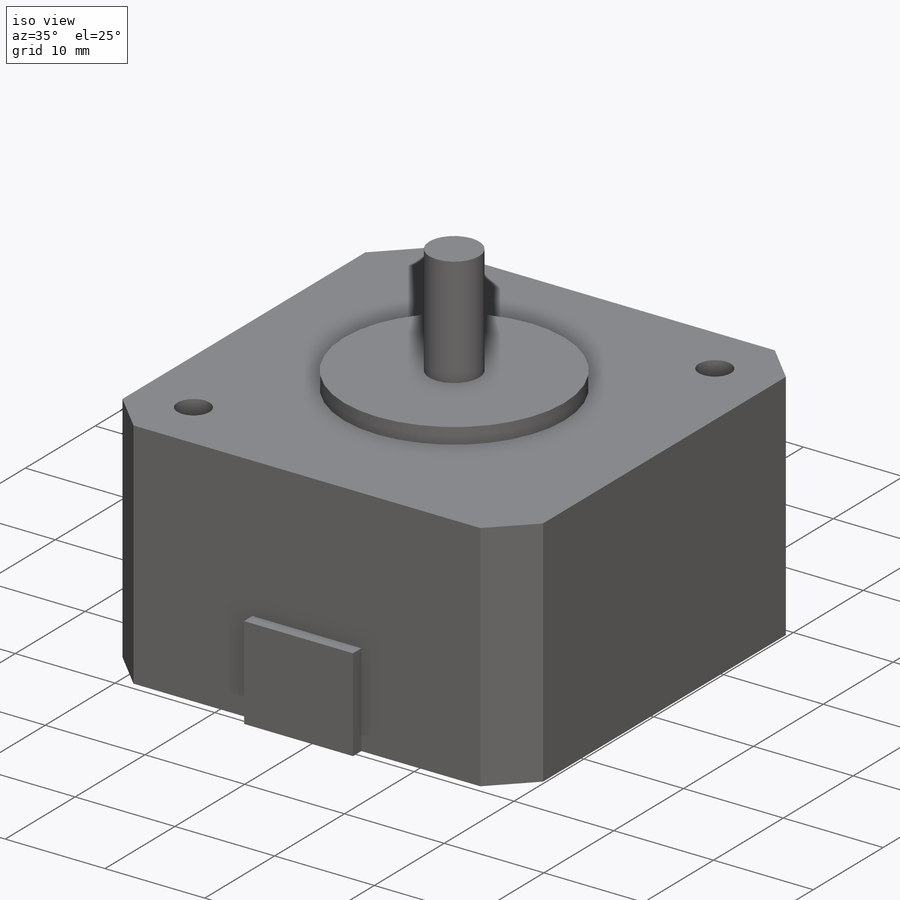
[diagram: iso view]
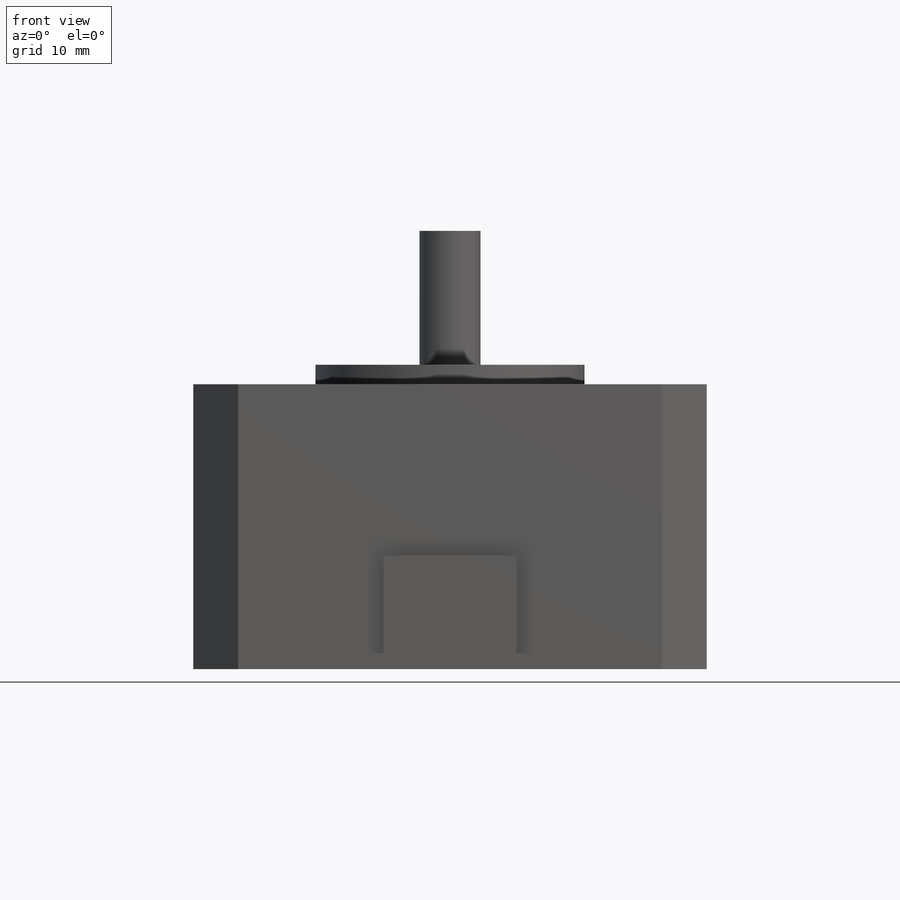
[diagram: front view]
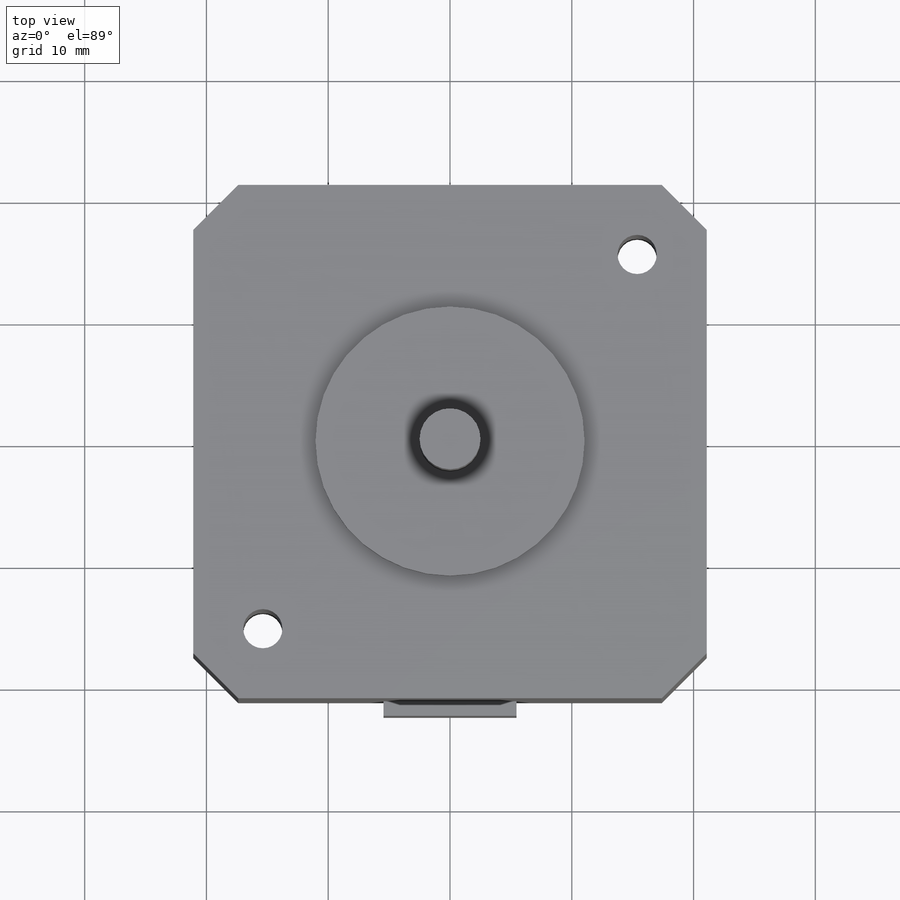
[diagram: top view]
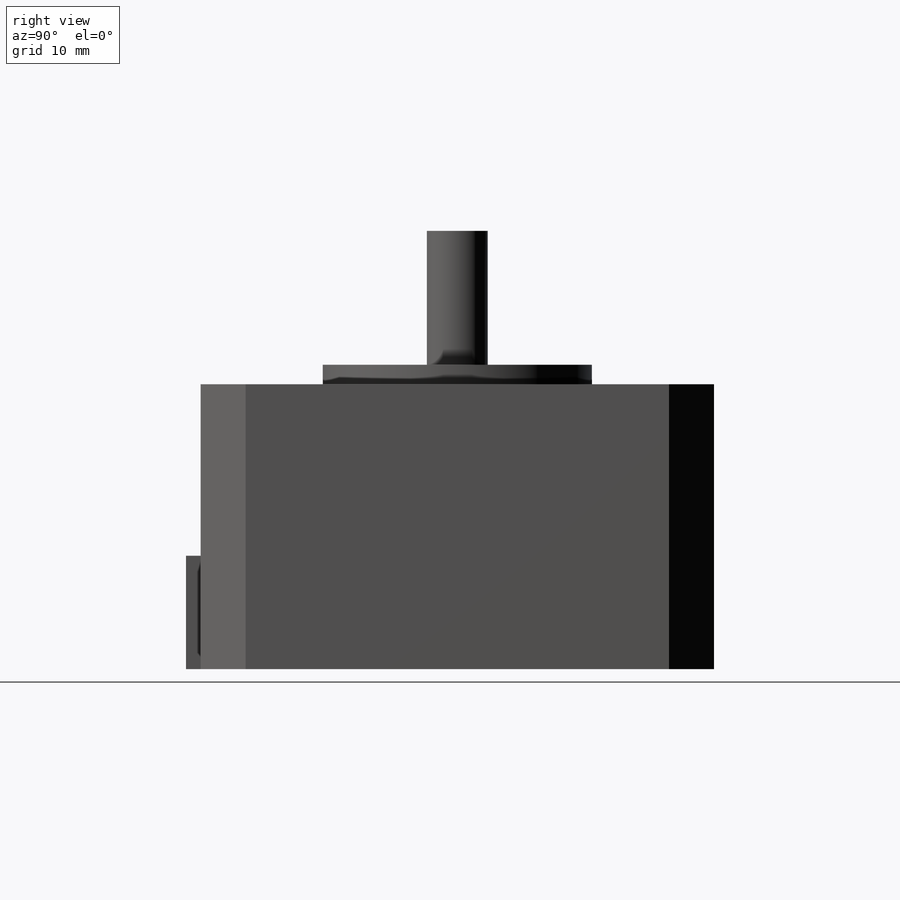
[diagram: right view]
SOLIDWORKS PART (.sldprt)
format: sldprt  version: not decoded by parser v0  size: 170,496 bytes
history: native  units: mm
features: sketch x5, extrude x4, material x1, cut_extrude x1 (+12 scaffold rows collapsed)
feature tree (23):
  scaffold x12  (default folders/planes/origin — collapsed)
  material  "Material <not specified>"
  sketch  "Sketch1"  dims[D1=42.17mm D2=42.17mm]
  extrude  "Boss-Extrude1"  Depth=23.4mm
  sketch  "Sketch2"  dims[D1=10.92mm D2=9.32mm]
  extrude  "Boss-Extrude2"  Depth=1.2mm
  sketch  "Sketch3"  dims[c1.D4=22.0mm c1.D5=3.22mm c1.D6=3.22mm c1.D1=30.74mm c1.D2=15.37mm c1.D3=15.37mm c2.D4=30.74mm]
  cut_extrude  "Cut-Extrude1"  [1 undecoded]
  sketch  "Sketch4"  dims[D1=22.1mm]
  extrude  "Boss-Extrude3"  Depth=1.6mm
  sketch  "Sketch5"  dims[D1=5.0mm]
  extrude  "Boss-Extrude4"  Depth=11mm
decode coverage: 9 of 10 modeling features carry decoded parameters
note: 1 parameter value undecoded
note: suppression state not decoded; provenance and decode notes live in map.json
